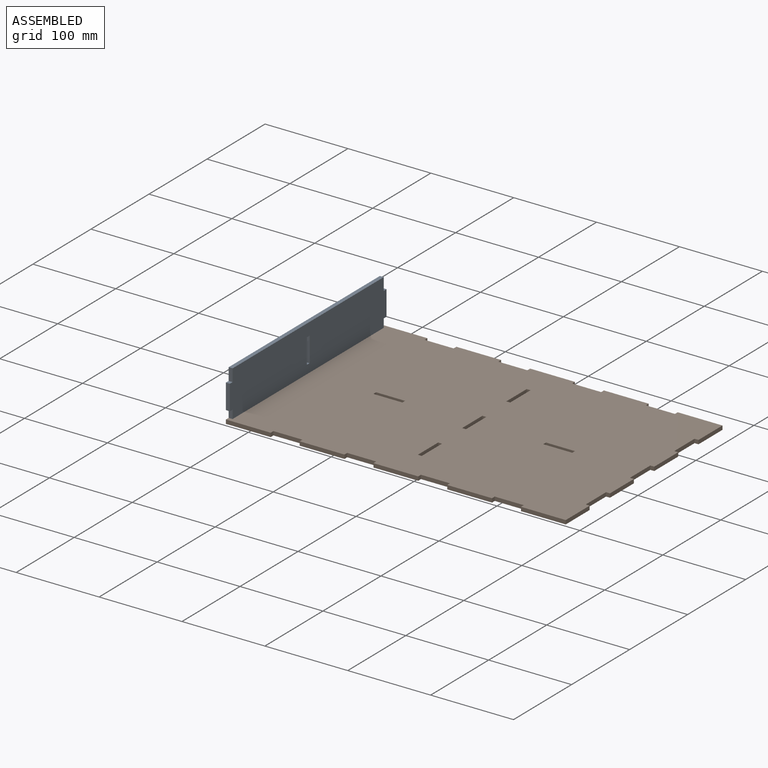
[diagram: assembled view]
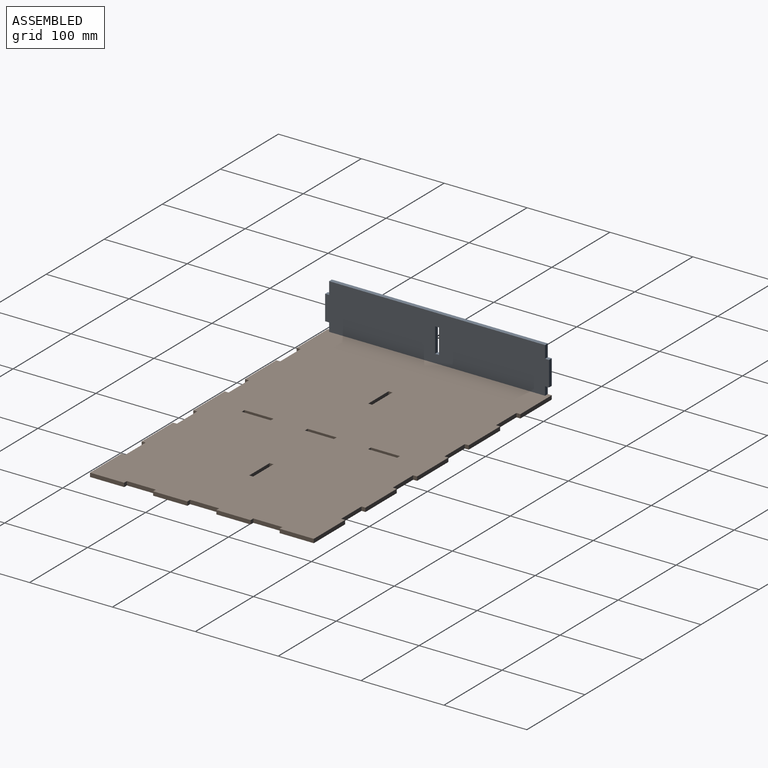
[diagram: assembled view, second angle]
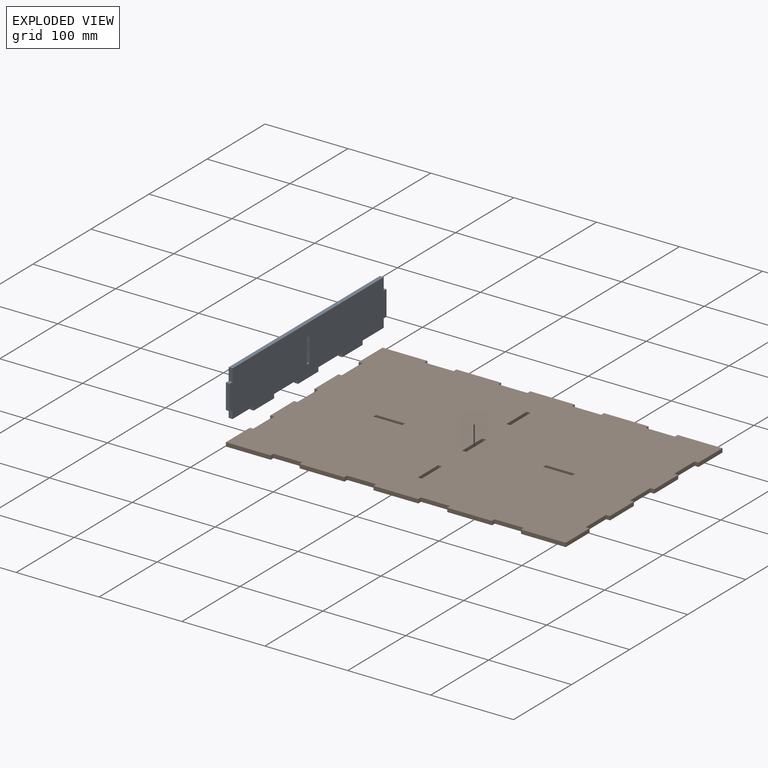
[diagram: exploded view]
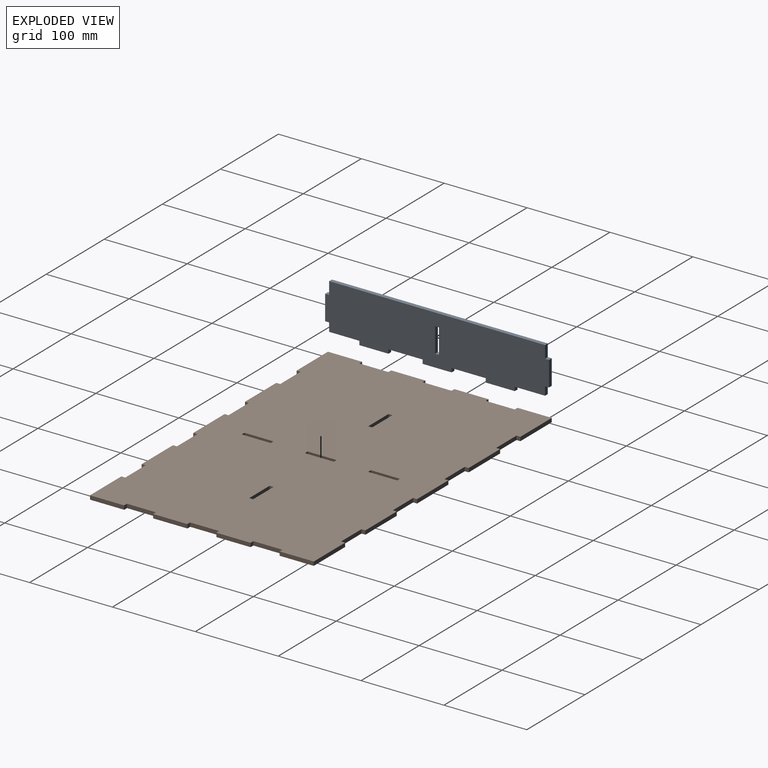
[diagram: exploded view, second angle]
ASSEMBLY  parts=2 mates=3
PART A: 30 faces, bbox 4.8x270x60 mm
  f0: plane 270x60mm, normal (1,0,0), area 15033.9mm2, adj f2,f3,f4,f5,f6,f7,f8,f9
  f1: plane 270x60mm, normal (-1,0,0), area 15033.9mm2, adj f2,f3,f4,f5,f6,f7,f8,f9
  f2: plane 30x4.75mm, normal (0,1,0), area 142.5mm2, adj f0,f1,f15,f25
  f3: plane 35x4.75mm, normal (0,0,-1), area 166.2mm2, adj f0,f1,f11,f21
  f4: plane 35x4.75mm, normal (0,0,-1), area 166.2mm2, adj f0,f1,f17,f20
  f5: plane 35x4.75mm, normal (0,0,-1), area 166.2mm2, adj f0,f1,f14,f18
  f6: plane 30x4.75mm, normal (0,-1,0), area 142.5mm2, adj f0,f1,f10,f23
  f7: plane 260.5x4.75mm, normal (0,0,1), area 1237.4mm2, adj f0,f1,f22,f24
  f8: plane 10.25x4.75mm, normal (0,-1,0), area 48.7mm2, adj f0,f1,f9,f10
  f9: plane 36.5x4.75mm, normal (0,0,-1), area 173.4mm2, adj f0,f1,f8,f11
  f10: plane 4.75x4.75mm, normal (0,0,-1), area 22.6mm2, adj f0,f1,f6,f8
  f11: plane 4.75x4.75mm, normal (0,-1,0), area 22.6mm2, adj f0,f1,f3,f9
  f12: plane 36.5x4.75mm, normal (0,0,-1), area 173.4mm2, adj f0,f1,f13,f14
  f13: plane 10.25x4.75mm, normal (0,1,0), area 48.7mm2, adj f0,f1,f12,f15
  f14: plane 4.75x4.75mm, normal (0,1,0), area 22.6mm2, adj f0,f1,f5,f12
  f15: plane 4.75x4.75mm, normal (0,0,-1), area 22.6mm2, adj f0,f1,f2,f13
  f16: plane 41.25x4.75mm, normal (0,0,-1), area 195.9mm2, adj f0,f1,f17,f18
  f17: plane 4.75x4.75mm, normal (0,1,0), area 22.6mm2, adj f0,f1,f4,f16
  f18: plane 4.75x4.75mm, normal (0,-1,0), area 22.6mm2, adj f0,f1,f5,f16
  f19: plane 41.25x4.75mm, normal (0,0,-1), area 195.9mm2, adj f0,f1,f20,f21
  f20: plane 4.75x4.75mm, normal (0,-1,0), area 22.6mm2, adj f0,f1,f4,f19
  f21: plane 4.75x4.75mm, normal (0,1,0), area 22.6mm2, adj f0,f1,f3,f19
  f22: plane 15x4.75mm, normal (0,-1,0), area 71.2mm2, adj f0,f1,f7,f23
  f23: plane 4.75x4.75mm, normal (0,0,1), area 22.6mm2, adj f0,f1,f6,f22
  f24: plane 15x4.75mm, normal (0,1,0), area 71.2mm2, adj f0,f1,f7,f25
  f25: plane 4.75x4.75mm, normal (0,0,1), area 22.6mm2, adj f0,f1,f2,f24
  f26: plane 4.75x4.75mm, normal (0,0,-1), area 22.6mm2, adj f0,f1,f27,f29
  f27: plane 30x4.75mm, normal (0,-1,0), area 142.5mm2, adj f0,f1,f26,f28
  f28: plane 4.75x4.75mm, normal (0,0,1), area 22.6mm2, adj f0,f1,f27,f29
  f29: plane 30x4.75mm, normal (0,1,0), area 142.5mm2, adj f0,f1,f26,f28
PART B: 82 faces, bbox 410x270x4.8 mm
  f0: plane 410x270mm, normal (0,0,1), area 107541.3mm2, adj f2,f3,f4,f5,f6,f7,f8,f9
  f1: plane 410x270mm, normal (0,0,-1), area 107541.2mm2, adj f2,f3,f4,f5,f6,f7,f8,f9
  f2: plane 54x4.75mm, normal (0,-1,0), area 256.5mm2, adj f0,f1,f19,f61
  f3: plane 54x4.75mm, normal (0,-1,0), area 256.5mm2, adj f0,f1,f54,f56
  f4: plane 54x4.75mm, normal (0,-1,0), area 256.5mm2, adj f0,f1,f39,f53
  f5: plane 54x4.75mm, normal (0,-1,0), area 256.5mm2, adj f0,f1,f38,f59
  f6: plane 41.25x4.75mm, normal (1,0,0), area 195.9mm2, adj f0,f1,f31,f36
  f7: plane 41.25x4.75mm, normal (1,0,0), area 195.9mm2, adj f0,f1,f18,f33
  f8: plane 41.25x4.75mm, normal (1,0,0), area 195.9mm2, adj f0,f1,f29,f32
  f9: plane 54x4.75mm, normal (0,1,0), area 256.5mm2, adj f0,f1,f20,f48
  f10: plane 54x4.75mm, normal (0,1,0), area 256.5mm2, adj f0,f1,f43,f44
  f11: plane 54x4.75mm, normal (0,1,0), area 256.5mm2, adj f0,f1,f41,f47
  f12: plane 54x4.75mm, normal (0,1,0), area 256.5mm2, adj f0,f1,f13,f21
  f13: plane 41.25x4.75mm, normal (-1,0,0), area 195.9mm2, adj f0,f1,f12,f52
  f14: plane 41.25x4.75mm, normal (-1,0,0), area 195.9mm2, adj f0,f1,f23,f26
  f15: plane 41.25x4.75mm, normal (-1,0,0), area 195.9mm2, adj f0,f1,f25,f50
  f16: plane 54x4.75mm, normal (0,-1,0), area 256.5mm2, adj f0,f1,f17,f57
  f17: plane 41.25x4.75mm, normal (1,0,0), area 195.9mm2, adj f0,f1,f16,f35
  f18: plane 54x4.75mm, normal (0,1,0), area 256.5mm2, adj f0,f1,f7,f46
  f19: plane 41.25x4.75mm, normal (-1,0,0), area 195.9mm2, adj f0,f1,f2,f27
  f20: plane 4.75x4.75mm, normal (-1,0,0), area 22.6mm2, adj f0,f1,f9,f22
  f21: plane 4.75x4.75mm, normal (1,0,0), area 22.6mm2, adj f0,f1,f12,f22
  f22: plane 35x4.75mm, normal (0,1,0), area 166.2mm2, adj f0,f1,f20,f21
  f23: plane 4.75x4.75mm, normal (0,1,0), area 22.6mm2, adj f0,f1,f14,f24
  f24: plane 35x4.75mm, normal (-1,0,0), area 166.2mm2, adj f0,f1,f23,f25
  f25: plane 4.75x4.75mm, normal (0,-1,0), area 22.6mm2, adj f0,f1,f15,f24
  f26: plane 4.75x4.75mm, normal (0,-1,0), area 22.6mm2, adj f0,f1,f14,f28
  f27: plane 4.75x4.75mm, normal (0,1,0), area 22.6mm2, adj f0,f1,f19,f28
  f28: plane 35x4.75mm, normal (-1,0,0), area 166.2mm2, adj f0,f1,f26,f27
  f29: plane 4.75x4.75mm, normal (0,-1,0), area 22.6mm2, adj f0,f1,f8,f30
  f30: plane 35x4.75mm, normal (1,0,0), area 166.2mm2, adj f0,f1,f29,f31
  f31: plane 4.75x4.75mm, normal (0,1,0), area 22.6mm2, adj f0,f1,f6,f30
  f32: plane 4.75x4.75mm, normal (0,1,0), area 22.6mm2, adj f0,f1,f8,f34
  f33: plane 4.75x4.75mm, normal (0,-1,0), area 22.6mm2, adj f0,f1,f7,f34
  f34: plane 35x4.75mm, normal (1,0,0), area 166.2mm2, adj f0,f1,f32,f33
  f35: plane 4.75x4.75mm, normal (0,1,0), area 22.6mm2, adj f0,f1,f17,f37
  f36: plane 4.75x4.75mm, normal (0,-1,0), area 22.6mm2, adj f0,f1,f6,f37
  f37: plane 35x4.75mm, normal (1,0,0), area 166.2mm2, adj f0,f1,f35,f36
  f38: plane 4.75x4.75mm, normal (1,0,0), area 22.6mm2, adj f0,f1,f5,f40
  f39: plane 4.75x4.75mm, normal (-1,0,0), area 22.6mm2, adj f0,f1,f4,f40
  f40: plane 35x4.75mm, normal (0,-1,0), area 166.2mm2, adj f0,f1,f38,f39
  f41: plane 4.75x4.75mm, normal (1,0,0), area 22.6mm2, adj f0,f1,f11,f42
  f42: plane 35x4.75mm, normal (0,1,0), area 166.2mm2, adj f0,f1,f41,f43
  f43: plane 4.75x4.75mm, normal (-1,0,0), area 22.6mm2, adj f0,f1,f10,f42
  f44: plane 4.75x4.75mm, normal (1,0,0), area 22.6mm2, adj f0,f1,f10,f45
  f45: plane 35x4.75mm, normal (0,1,0), area 166.2mm2, adj f0,f1,f44,f46
  f46: plane 4.75x4.75mm, normal (-1,0,0), area 22.6mm2, adj f0,f1,f18,f45
  f47: plane 4.75x4.75mm, normal (-1,0,0), area 22.6mm2, adj f0,f1,f11,f49
  f48: plane 4.75x4.75mm, normal (1,0,0), area 22.6mm2, adj f0,f1,f9,f49
  f49: plane 35x4.75mm, normal (0,1,0), area 166.2mm2, adj f0,f1,f47,f48
  f50: plane 4.75x4.75mm, normal (0,1,0), area 22.6mm2, adj f0,f1,f15,f51
  f51: plane 35x4.75mm, normal (-1,0,0), area 166.2mm2, adj f0,f1,f50,f52
  f52: plane 4.75x4.75mm, normal (0,-1,0), area 22.6mm2, adj f0,f1,f13,f51
  f53: plane 4.75x4.75mm, normal (1,0,0), area 22.6mm2, adj f0,f1,f4,f55
  f54: plane 4.75x4.75mm, normal (-1,0,0), area 22.6mm2, adj f0,f1,f3,f55
  f55: plane 35x4.75mm, normal (0,-1,0), area 166.2mm2, adj f0,f1,f53,f54
  f56: plane 4.75x4.75mm, normal (1,0,0), area 22.6mm2, adj f0,f1,f3,f58
  f57: plane 4.75x4.75mm, normal (-1,0,0), area 22.6mm2, adj f0,f1,f16,f58
  f58: plane 35x4.75mm, normal (0,-1,0), area 166.2mm2, adj f0,f1,f56,f57
  f59: plane 4.75x4.75mm, normal (-1,0,0), area 22.6mm2, adj f0,f1,f5,f60
  f60: plane 35x4.75mm, normal (0,-1,0), area 166.2mm2, adj f0,f1,f59,f61
  f61: plane 4.75x4.75mm, normal (1,0,0), area 22.6mm2, adj f0,f1,f2,f60
  f62: plane 4.75x4.75mm, normal (1,0,0), area 22.6mm2, adj f0,f1,f63,f65
  f63: plane 35x4.75mm, normal (0,1,0), area 166.2mm2, adj f0,f1,f62,f64
  f64: plane 4.75x4.75mm, normal (-1,0,0), area 22.6mm2, adj f0,f1,f63,f65
  f65: plane 35x4.75mm, normal (0,-1,0), area 166.2mm2, adj f0,f1,f62,f64
  f66: plane 35x4.75mm, normal (1,0,0), area 166.2mm2, adj f0,f1,f67,f69
  f67: plane 4.75x4.75mm, normal (0,1,0), area 22.6mm2, adj f0,f1,f66,f68
  f68: plane 35x4.75mm, normal (-1,0,0), area 166.2mm2, adj f0,f1,f67,f69
  f69: plane 4.75x4.75mm, normal (0,-1,0), area 22.6mm2, adj f0,f1,f66,f68
  f70: plane 4.75x4.75mm, normal (0,1,0), area 22.6mm2, adj f0,f1,f71,f73
  f71: plane 35x4.75mm, normal (-1,0,0), area 166.2mm2, adj f0,f1,f70,f72
  f72: plane 4.75x4.75mm, normal (0,-1,0), area 22.6mm2, adj f0,f1,f71,f73
  f73: plane 35x4.75mm, normal (1,0,0), area 166.2mm2, adj f0,f1,f70,f72
  f74: plane 35x4.75mm, normal (-1,0,0), area 166.2mm2, adj f0,f1,f75,f77
  f75: plane 4.75x4.75mm, normal (0,-1,0), area 22.6mm2, adj f0,f1,f74,f76
  f76: plane 35x4.75mm, normal (1,0,0), area 166.2mm2, adj f0,f1,f75,f77
  f77: plane 4.75x4.75mm, normal (0,1,0), area 22.6mm2, adj f0,f1,f74,f76
  f78: plane 4.75x4.75mm, normal (1,0,0), area 22.6mm2, adj f0,f1,f79,f81
  f79: plane 35x4.75mm, normal (0,1,0), area 166.2mm2, adj f0,f1,f78,f80
  f80: plane 4.75x4.75mm, normal (-1,0,0), area 22.6mm2, adj f0,f1,f79,f81
  f81: plane 35x4.75mm, normal (0,-1,0), area 166.2mm2, adj f0,f1,f78,f80
PLACE A t=(215.08,-18.02,-9.81)mm
PLACE B t=(215.08,-18.02,-9.81)mm
MATE planar B.f1 <-> A.f5  axis (0,0,-1) through (215.08,-18.02,-9.81)mm
MATE planar B.f12 <-> A.f2  axis (0,1,0) through (37.08,116.98,-9.81)mm
MATE planar B.f14 <-> A.f1  axis (-1,0,0) through (10.08,-56.14,-7.44)mm
